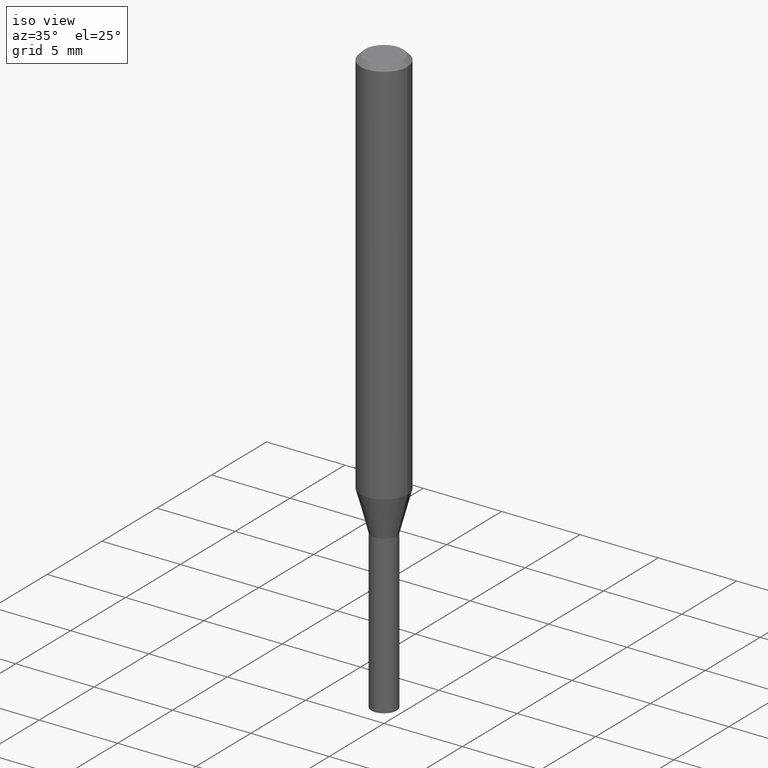
[diagram: clean part render]
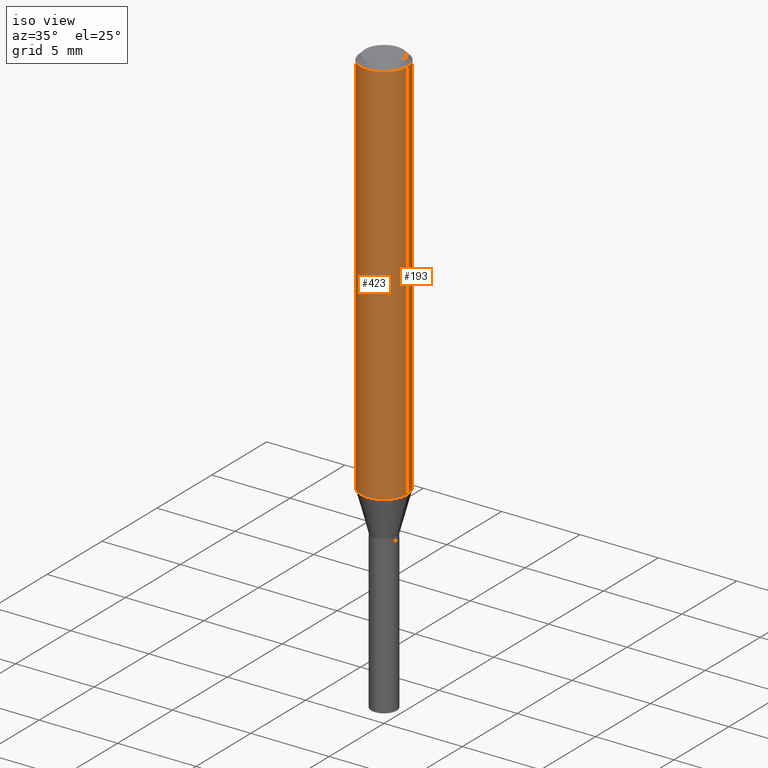
[diagram: same view with one multi-face feature highlighted, each face labeled with its STEP entity id]
A machine part, iso view. The highlighted faces form ONE feature: a constant-radius fillet chain: 2 tangent blend faces with common blend radius 1.4999 mm. The faces share edges in the B-rep.
Their STEP definitions:
[1] entity #423 (Cylinder):
#4 = CARTESIAN_POINT ( 'NONE',  ( -0.05904999999999999832, -1.316979813027385650E-15, -0.01181000000000007218 ) ) ;
#19 = EDGE_CURVE ( 'NONE', #312, #177, #260, .T. ) ;
#24 = AXIS2_PLACEMENT_3D ( 'NONE', #87, #45, #53 ) ;
#45 = DIRECTION ( 'NONE',  ( -2.445468806185136597E-29, 3.491481338843145583E-15, 1.000000000000000000 ) ) ;
#53 = DIRECTION ( 'NONE',  ( 1.000000000000000000, -6.982962677686266711E-15, 0.000000000000000000 ) ) ;
#87 = CARTESIAN_POINT ( 'NONE',  ( 2.888098660104664204E-31, -4.123439461173780263E-17, -0.01181000000000007218 ) ) ;
#93 = AXIS2_PLACEMENT_3D ( 'NONE', #358, #162, #315 ) ;
#108 = EDGE_CURVE ( 'NONE', #177, #333, #228, .T. ) ;
#115 = EDGE_CURVE ( 'NONE', #316, #333, #461, .T. ) ;
#119 = DIRECTION ( 'NONE',  ( -2.445468806185136877E-29, 3.491481338843145188E-15, 1.000000000000000000 ) ) ;
#124 = CYLINDRICAL_SURFACE ( 'NONE', #93, 0.05905000000000006077 ) ;
#129 = EDGE_LOOP ( 'NONE', ( #286, #441, #370, #445 ) ) ;
#135 = VECTOR ( 'NONE', #298, 39.37007874015748143 ) ;
#162 = DIRECTION ( 'NONE',  ( -2.445468806185136597E-29, 3.491481338843145583E-15, 1.000000000000000000 ) ) ;
#167 = FACE_OUTER_BOUND ( 'NONE', #129, .T. ) ;
#177 = VERTEX_POINT ( 'NONE', #4 ) ;
#228 = CIRCLE ( 'NONE', #24, 0.05904999999999999832 ) ;
#248 = VECTOR ( 'NONE', #119, 39.37007874015748143 ) ;
#260 = LINE ( 'NONE', #481, #135 ) ;
#286 = ORIENTED_EDGE ( 'NONE', *, *, #19, .F. ) ;
#294 = DIRECTION ( 'NONE',  ( -2.445468806185136597E-29, 3.491481338843145583E-15, 1.000000000000000000 ) ) ;
#298 = DIRECTION ( 'NONE',  ( -2.445468806185136877E-29, 3.491481338843145188E-15, 1.000000000000000000 ) ) ;
#312 = VERTEX_POINT ( 'NONE', #313 ) ;
#313 = CARTESIAN_POINT ( 'NONE',  ( -0.05905000000000011628, -3.012300716909374642E-15, -0.9829284104129908384 ) ) ;
#315 = DIRECTION ( 'NONE',  ( 1.000000000000000000, -6.982962677686266711E-15, 4.876176775795935793E-29 ) ) ;
#316 = VERTEX_POINT ( 'NONE', #434 ) ;
#319 = CIRCLE ( 'NONE', #486, 0.05905000000000011628 ) ;
#333 = VERTEX_POINT ( 'NONE', #478 ) ;
#358 = CARTESIAN_POINT ( 'NONE',  ( 0.000000000000000000, 0.000000000000000000, 0.000000000000000000 ) ) ;
#370 = ORIENTED_EDGE ( 'NONE', *, *, #115, .T. ) ;
#381 = DIRECTION ( 'NONE',  ( 1.000000000000000000, -6.982962677686266711E-15, 0.000000000000000000 ) ) ;
#388 = CARTESIAN_POINT ( 'NONE',  ( 0.05905000000000006077, -4.123439461173744764E-16, 2.879382386107503023E-30 ) ) ;
#423 = ADVANCED_FACE ( 'NONE', ( #167 ), #124, .T. ) ;
#434 = CARTESIAN_POINT ( 'NONE',  ( 0.05905000000000011628, -3.844220148493089449E-15, -0.9829284104129908384 ) ) ;
#441 = ORIENTED_EDGE ( 'NONE', *, *, #462, .T. ) ;
#445 = ORIENTED_EDGE ( 'NONE', *, *, #108, .F. ) ;
#461 = LINE ( 'NONE', #388, #248 ) ;
#462 = EDGE_CURVE ( 'NONE', #312, #316, #319, .T. ) ;
#478 = CARTESIAN_POINT ( 'NONE',  ( 0.05904999999999999832, -4.535783407291118600E-16, -0.01181000000000007218 ) ) ;
#481 = CARTESIAN_POINT ( 'NONE',  ( -0.05905000000000006077, 4.195754854663395916E-16, -2.904631170795524694E-30 ) ) ;
#484 = CARTESIAN_POINT ( 'NONE',  ( 2.403720766378110614E-29, -3.431876202375714135E-15, -0.9829284104129908384 ) ) ;
#486 = AXIS2_PLACEMENT_3D ( 'NONE', #484, #294, #381 ) ;
[2] entity #193 (Cylinder):
#4 = CARTESIAN_POINT ( 'NONE',  ( -0.05904999999999999832, -1.316979813027385650E-15, -0.01181000000000007218 ) ) ;
#19 = EDGE_CURVE ( 'NONE', #312, #177, #260, .T. ) ;
#28 = DIRECTION ( 'NONE',  ( -2.445468806185136597E-29, 3.491481338843145583E-15, 1.000000000000000000 ) ) ;
#35 = ORIENTED_EDGE ( 'NONE', *, *, #458, .F. ) ;
#69 = CIRCLE ( 'NONE', #373, 0.05904999999999999832 ) ;
#75 = DIRECTION ( 'NONE',  ( -2.445468806185136597E-29, 3.491481338843145583E-15, 1.000000000000000000 ) ) ;
#115 = EDGE_CURVE ( 'NONE', #316, #333, #461, .T. ) ;
#119 = DIRECTION ( 'NONE',  ( -2.445468806185136877E-29, 3.491481338843145188E-15, 1.000000000000000000 ) ) ;
#127 = AXIS2_PLACEMENT_3D ( 'NONE', #469, #28, #328 ) ;
#135 = VECTOR ( 'NONE', #298, 39.37007874015748143 ) ;
#164 = CIRCLE ( 'NONE', #127, 0.05905000000000011628 ) ;
#177 = VERTEX_POINT ( 'NONE', #4 ) ;
#193 = ADVANCED_FACE ( 'NONE', ( #233 ), #467, .T. ) ;
#206 = ORIENTED_EDGE ( 'NONE', *, *, #393, .T. ) ;
#233 = FACE_OUTER_BOUND ( 'NONE', #361, .T. ) ;
#248 = VECTOR ( 'NONE', #119, 39.37007874015748143 ) ;
#260 = LINE ( 'NONE', #481, #135 ) ;
#284 = ORIENTED_EDGE ( 'NONE', *, *, #19, .T. ) ;
#298 = DIRECTION ( 'NONE',  ( -2.445468806185136877E-29, 3.491481338843145188E-15, 1.000000000000000000 ) ) ;
#308 = DIRECTION ( 'NONE',  ( -2.445468806185136597E-29, 3.491481338843145583E-15, 1.000000000000000000 ) ) ;
#312 = VERTEX_POINT ( 'NONE', #313 ) ;
#313 = CARTESIAN_POINT ( 'NONE',  ( -0.05905000000000011628, -3.012300716909374642E-15, -0.9829284104129908384 ) ) ;
#316 = VERTEX_POINT ( 'NONE', #434 ) ;
#328 = DIRECTION ( 'NONE',  ( 1.000000000000000000, -6.982962677686266711E-15, 0.000000000000000000 ) ) ;
#331 = CARTESIAN_POINT ( 'NONE',  ( 2.888098660104664204E-31, -4.123439461173780263E-17, -0.01181000000000007218 ) ) ;
#333 = VERTEX_POINT ( 'NONE', #478 ) ;
#357 = DIRECTION ( 'NONE',  ( 1.000000000000000000, -6.982962677686266711E-15, 4.876176775795935793E-29 ) ) ;
#361 = EDGE_LOOP ( 'NONE', ( #206, #284, #35, #453 ) ) ;
#373 = AXIS2_PLACEMENT_3D ( 'NONE', #331, #75, #446 ) ;
#388 = CARTESIAN_POINT ( 'NONE',  ( 0.05905000000000006077, -4.123439461173744764E-16, 2.879382386107503023E-30 ) ) ;
#393 = EDGE_CURVE ( 'NONE', #316, #312, #164, .T. ) ;
#434 = CARTESIAN_POINT ( 'NONE',  ( 0.05905000000000011628, -3.844220148493089449E-15, -0.9829284104129908384 ) ) ;
#446 = DIRECTION ( 'NONE',  ( 1.000000000000000000, -6.982962677686266711E-15, 0.000000000000000000 ) ) ;
#453 = ORIENTED_EDGE ( 'NONE', *, *, #115, .F. ) ;
#457 = CARTESIAN_POINT ( 'NONE',  ( 0.000000000000000000, 0.000000000000000000, 0.000000000000000000 ) ) ;
#458 = EDGE_CURVE ( 'NONE', #333, #177, #69, .T. ) ;
#461 = LINE ( 'NONE', #388, #248 ) ;
#467 = CYLINDRICAL_SURFACE ( 'NONE', #489, 0.05905000000000006077 ) ;
#469 = CARTESIAN_POINT ( 'NONE',  ( 2.403720766378110614E-29, -3.431876202375714135E-15, -0.9829284104129908384 ) ) ;
#478 = CARTESIAN_POINT ( 'NONE',  ( 0.05904999999999999832, -4.535783407291118600E-16, -0.01181000000000007218 ) ) ;
#481 = CARTESIAN_POINT ( 'NONE',  ( -0.05905000000000006077, 4.195754854663395916E-16, -2.904631170795524694E-30 ) ) ;
#489 = AXIS2_PLACEMENT_3D ( 'NONE', #457, #308, #357 ) ;